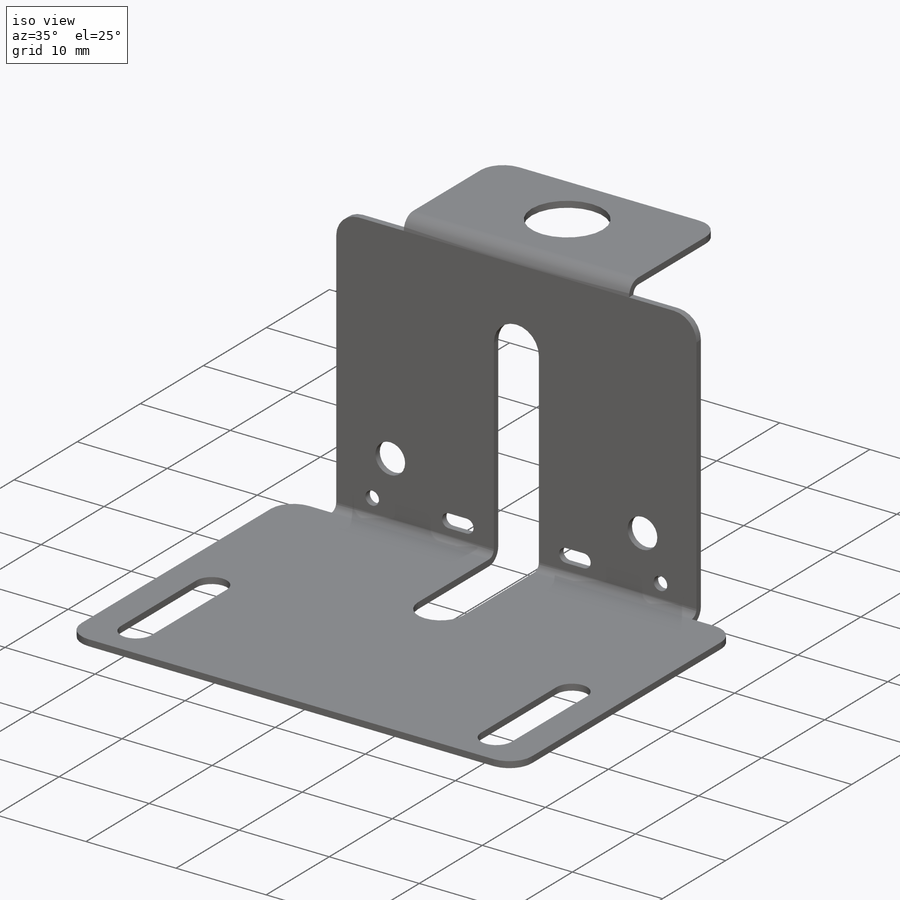
[diagram: iso view]
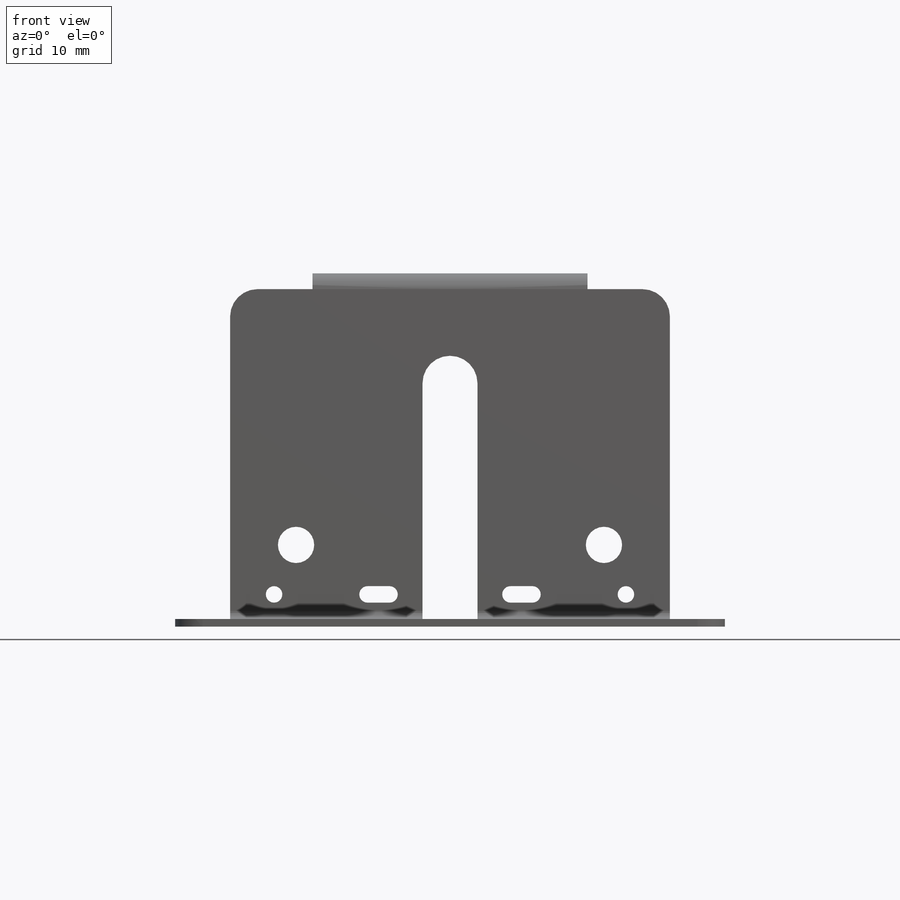
[diagram: front view]
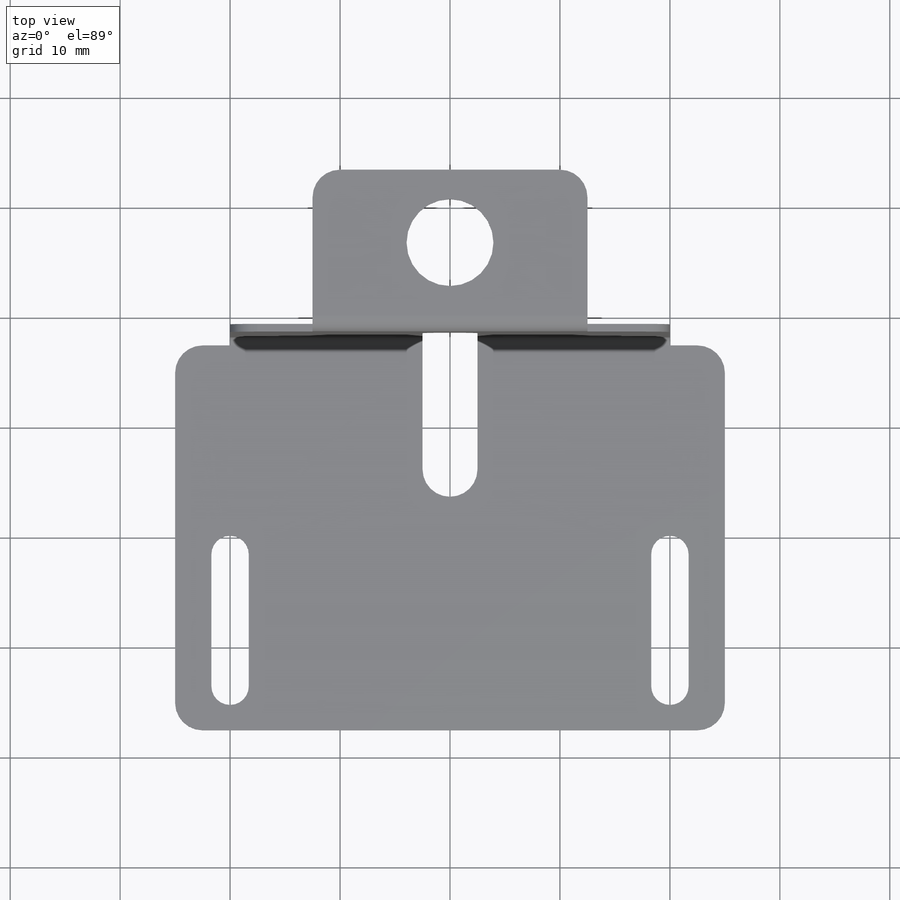
[diagram: top view]
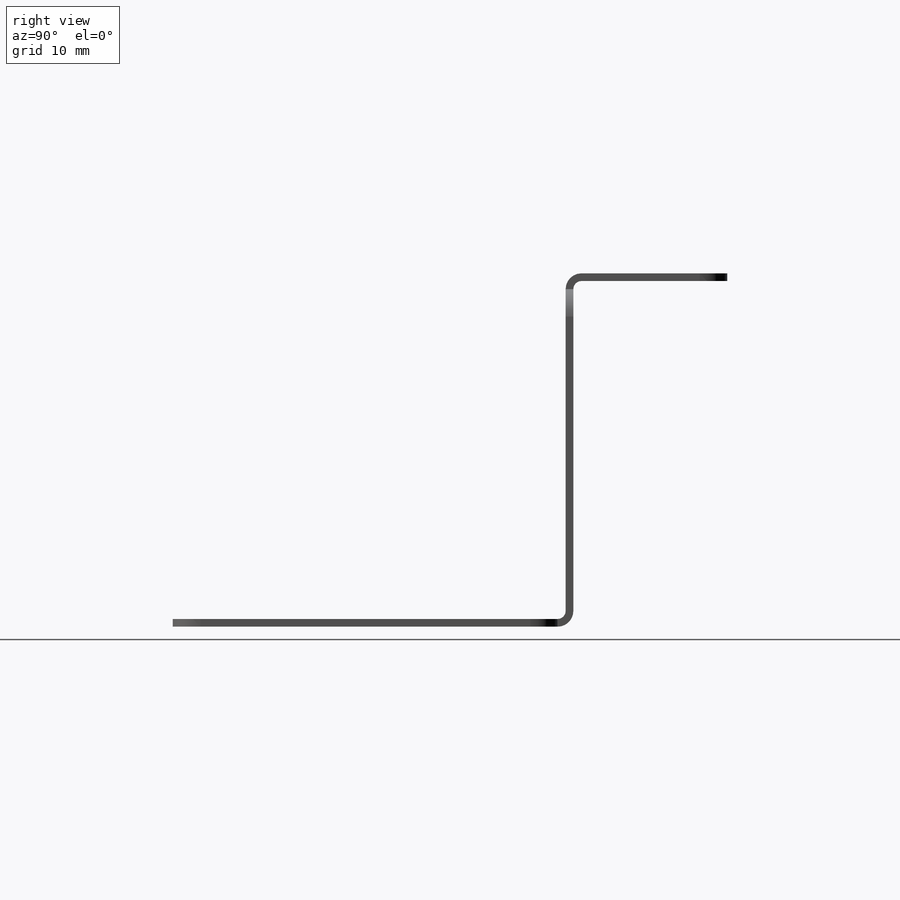
[diagram: right view]
SOLIDWORKS PART (.sldprt)
format: sldprt  version: not decoded by parser v0  size: 376,320 bytes
history: native  units: mm
features: sketch x10, cut_extrude x5, sheet_metal_op x2, material x1 + 2 further entries (+11 scaffold rows collapsed; 1 parser-record rows omitted)
feature tree (32):
  scaffold x11  (default folders/planes/origin — collapsed)
  material  "Plain Carbon Steel"
  sketch  "Sketch1"  dims[D1=50.0mm D2=35.0mm]
  sheet_metal_op  "Sheet-Metal1"
  sheet_metal_op  "Base-Flange1"
  sketch  "Sketch4"  dims[D1=3.4mm D2=4.0mm D3=12.0mm D4=40.0mm]
  cut_extrude  "Cut-Extrude1"  [1 undecoded]
  sketch  "Sketch7"  dims[c1.D1=40.0mm c1.D2=30.0mm c2.D1=0.7366mm c2.D4=90.0deg c2.D5=1.0 c2.D8=0.35mm c2.D9=0.35mm c3.D1=0.7366mm c3.D2=500.0mm c3.D3=0.0mm c3.D6=10.0mm c3.D7=30.0mm]
  sketch  "Sketch10"  dims[c1.D1=25.0mm c1.D2=14.0mm c2.D1=0.7366mm c2.D4=90.0deg c2.D5=2.0 c2.D8=0.35mm c2.D9=0.35mm c3.D1=0.7366mm c3.D2=500.0mm c3.D3=0.0mm c3.D6=10.0mm c3.D7=14.0mm]
  sketch  "Sketch11"  dims[D1=7.9mm]
  cut_extrude  "Cut-Extrude2"  [1 undecoded]
  sketch  "Sketch14"  dims[D1=5.0mm D2=10.0mm]
  cut_extrude  "Cut-Extrude4"  Depth=2mm
  sketch  "Sketch15"  dims[D1=12.0mm]
  cut_extrude  "Cut-Extrude5"  [1 undecoded]
  sketch  "Sketch16"  dims[c1.D1=1.5mm c1.D6=3.3mm c1.D2=4.0mm c1.D3=4.0mm c2.D1=2.0mm c2.D2=1.5mm c2.D3=4.0mm c2.D4=4.0mm c2.D5=1.5mm c2.D7=6.0mm c2.D8=6.0mm]
  cut_extrude  "Cut-Extrude6"  Depth=2.5mm
  "Flat-Pattern1"
  sketch  "Bend-Lines1"
  sketch  "Bounding-Box1"
  "Flatten-<EdgeBend2>1"
  parser-record x1  (decoder bookkeeping rows leaked as tree rows — omitted from the tree; the rows remain in map.json)
decode coverage: 10 of 17 modeling features carry decoded parameters; 2 rows unclassified (native names shown)
note: 3 parameter values undecoded
summary: no parameter record found for 3 features
note: suppression state not decoded; provenance and decode notes live in map.json
